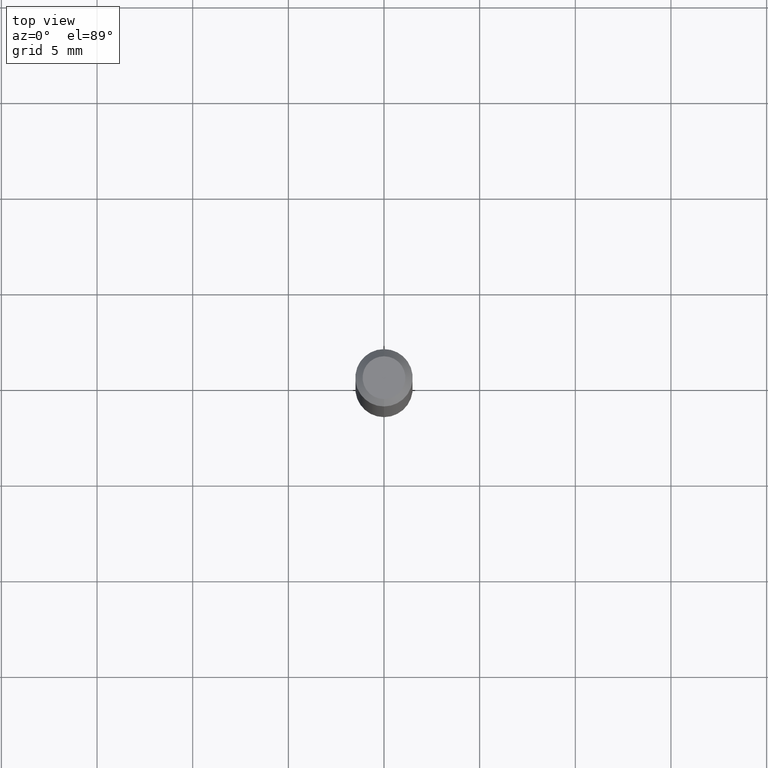
[diagram: clean part render]
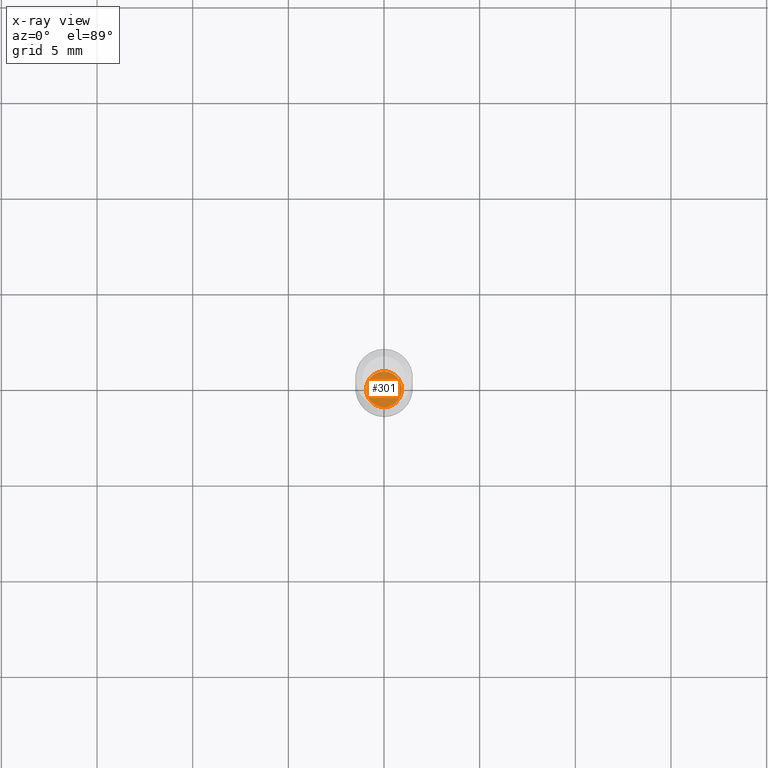
[diagram: x-ray — body ghosted, one internal face saturated and labeled with its STEP entity id]
A machine part, top view, then the same camera in x-ray: the body is ghosted and one INTERNAL B-rep face — a face not visible from any outside direction — is saturated and labeled: STEP entity #301.
In plain terms, the highlighted planar face has unit normal (-0, 0, 1).
Its self-contained STEP definition (entity closure, byte-faithful):
#13 = ORIENTED_EDGE ( 'NONE', *, *, #463, .F. ) ;
#45 = DIRECTION ( 'NONE',  ( -6.982962677686265133E-15, -1.000000000000000000, 0.000000000000000000 ) ) ;
#62 = CARTESIAN_POINT ( 'NONE',  ( 3.389243036018016128E-29, -4.838746868945498624E-15, -1.385899999999999910 ) ) ;
#73 = VERTEX_POINT ( 'NONE', #314 ) ;
#74 = DIRECTION ( 'NONE',  ( -2.445517740109686993E-29, 3.491411262678042985E-15, 1.000000000000000000 ) ) ;
#127 = CARTESIAN_POINT ( 'NONE',  ( 3.389243036018016128E-29, -4.838746868945498624E-15, -1.385899999999999910 ) ) ;
#166 = CARTESIAN_POINT ( 'NONE',  ( 3.389243036018016128E-29, -4.838746868945498624E-15, -1.385899999999999910 ) ) ;
#168 = VERTEX_POINT ( 'NONE', #361 ) ;
#241 = DIRECTION ( 'NONE',  ( -6.982962677686265922E-15, -1.000000000000000000, 3.491411262678042985E-15 ) ) ;
#253 = FACE_OUTER_BOUND ( 'NONE', #424, .T. ) ;
#260 = ORIENTED_EDGE ( 'NONE', *, *, #262, .F. ) ;
#262 = EDGE_CURVE ( 'NONE', #168, #73, #275, .T. ) ;
#275 = CIRCLE ( 'NONE', #368, 0.03690000000000000224 ) ;
#283 = AXIS2_PLACEMENT_3D ( 'NONE', #62, #383, #504 ) ;
#301 = ADVANCED_FACE ( 'NONE', ( #253 ), #393, .F. ) ;
#314 = CARTESIAN_POINT ( 'NONE',  ( 2.639666263349108125E-16, 0.03689999999999515889, -1.385899999999999910 ) ) ;
#361 = CARTESIAN_POINT ( 'NONE',  ( -2.576713228065893242E-16, -0.03690000000000483865, -1.385899999999999910 ) ) ;
#368 = AXIS2_PLACEMENT_3D ( 'NONE', #166, #400, #45 ) ;
#370 = CIRCLE ( 'NONE', #283, 0.03690000000000000224 ) ;
#383 = DIRECTION ( 'NONE',  ( -2.445517740109687553E-29, 3.491411262678042591E-15, 1.000000000000000000 ) ) ;
#393 = PLANE ( 'NONE',  #452 ) ;
#400 = DIRECTION ( 'NONE',  ( -2.445517740109687553E-29, 3.491411262678042591E-15, 1.000000000000000000 ) ) ;
#424 = EDGE_LOOP ( 'NONE', ( #260, #13 ) ) ;
#452 = AXIS2_PLACEMENT_3D ( 'NONE', #127, #74, #241 ) ;
#463 = EDGE_CURVE ( 'NONE', #73, #168, #370, .T. ) ;
#504 = DIRECTION ( 'NONE',  ( -6.982962677686265133E-15, -1.000000000000000000, 0.000000000000000000 ) ) ;